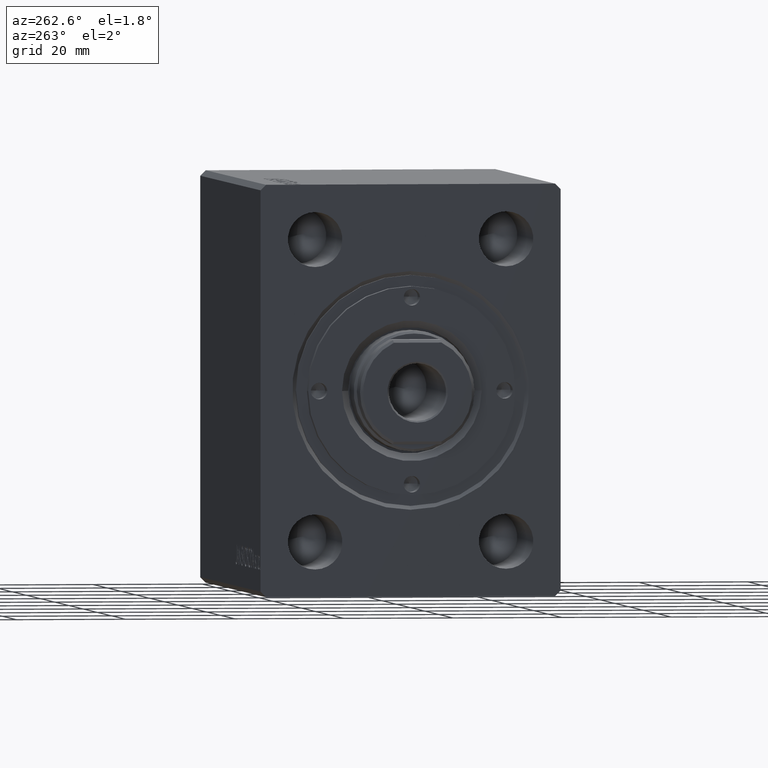
[diagram: clean part render]
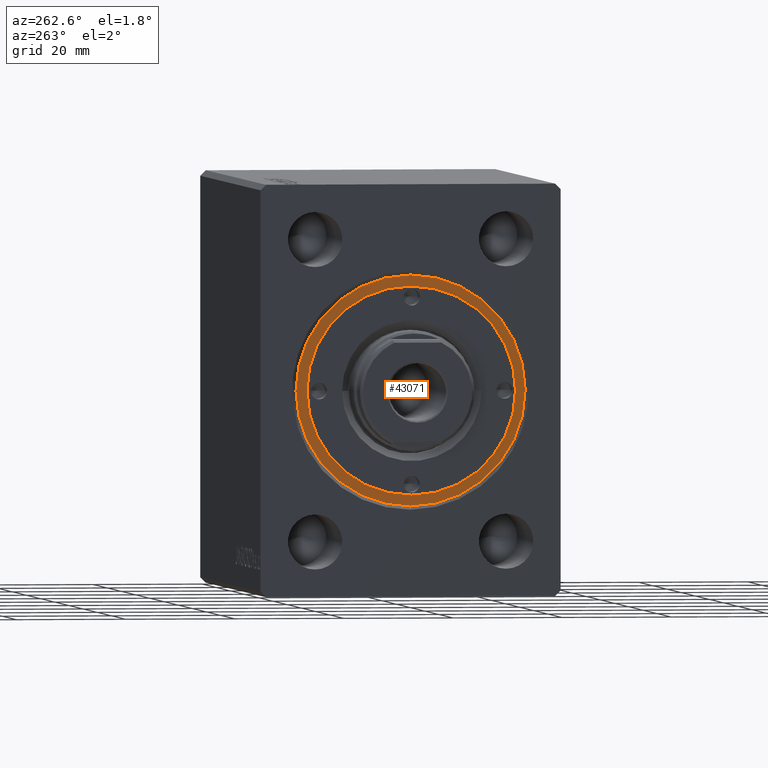
[diagram: same view with one face highlighted and labeled with its STEP entity id]
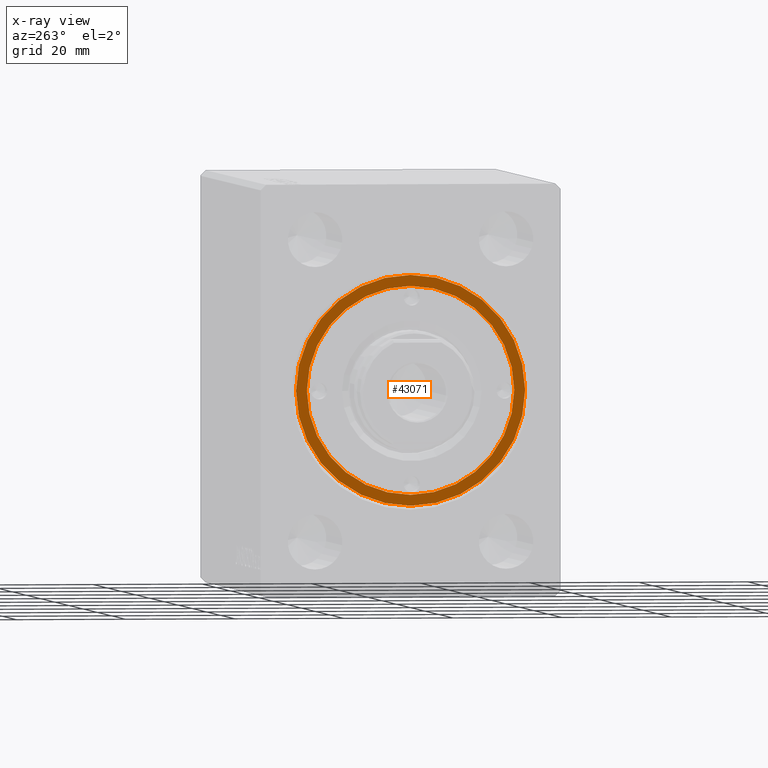
[diagram: x-ray of the same camera — body ghosted, the highlighted face saturated]
A machine part, auxiliary view. The second image highlights one B-rep face of the part: STEP entity #43071.
The next image is the same camera in x-ray: the body ghosted, the highlighted face saturated — about 0% of this face is hidden behind the body in this view.
In plain terms, the highlighted planar face has unit normal (-1, 0, 0).
Its self-contained STEP definition (entity closure, byte-faithful):
#1863 = DIRECTION ( 'NONE',  ( 0.000000000000000000, 0.000000000000000000, 1.000000000000000000 ) ) ;
#2988 = DIRECTION ( 'NONE',  ( 1.000000000000000000, 0.000000000000000000, 0.000000000000000000 ) ) ;
#4882 = CARTESIAN_POINT ( 'NONE',  ( 21.00000000000000000, 2.571758278209441661E-15, 8.199999999999999289 ) ) ;
#4898 = EDGE_CURVE ( 'NONE', #8662, #39719, #26551, .T. ) ;
#5891 = DIRECTION ( 'NONE',  ( 0.000000000000000000, 0.000000000000000000, 1.000000000000000000 ) ) ;
#6568 = CARTESIAN_POINT ( 'NONE',  ( 0.000000000000000000, 0.000000000000000000, 8.199999999999999289 ) ) ;
#7778 = AXIS2_PLACEMENT_3D ( 'NONE', #25098, #24445, #31593 ) ;
#8211 = DIRECTION ( 'NONE',  ( 1.000000000000000000, 0.000000000000000000, 0.000000000000000000 ) ) ;
#8554 = PLANE ( 'NONE',  #18677 ) ;
#8601 = AXIS2_PLACEMENT_3D ( 'NONE', #24184, #38050, #17044 ) ;
#8662 = VERTEX_POINT ( 'NONE', #29883 ) ;
#9280 = EDGE_CURVE ( 'NONE', #42281, #9675, #34307, .T. ) ;
#9675 = VERTEX_POINT ( 'NONE', #20944 ) ;
#9960 = ORIENTED_EDGE ( 'NONE', *, *, #29990, .F. ) ;
#11099 = CARTESIAN_POINT ( 'NONE',  ( 0.000000000000000000, 0.000000000000000000, 8.199999999999999289 ) ) ;
#14710 = AXIS2_PLACEMENT_3D ( 'NONE', #11099, #32080, #8211 ) ;
#15448 = DIRECTION ( 'NONE',  ( 1.000000000000000000, 0.000000000000000000, -0.000000000000000000 ) ) ;
#17044 = DIRECTION ( 'NONE',  ( 1.000000000000000000, 0.000000000000000000, 0.000000000000000000 ) ) ;
#17048 = ORIENTED_EDGE ( 'NONE', *, *, #9280, .T. ) ;
#17296 = AXIS2_PLACEMENT_3D ( 'NONE', #6568, #5891, #2988 ) ;
#18095 = CARTESIAN_POINT ( 'NONE',  ( -19.00000000000000000, 0.000000000000000000, 8.199999999999999289 ) ) ;
#18677 = AXIS2_PLACEMENT_3D ( 'NONE', #22148, #1863, #15448 ) ;
#20944 = CARTESIAN_POINT ( 'NONE',  ( -21.00000000000000000, 0.000000000000000000, 8.199999999999999289 ) ) ;
#21861 = ORIENTED_EDGE ( 'NONE', *, *, #23632, .T. ) ;
#22148 = CARTESIAN_POINT ( 'NONE',  ( 0.000000000000000000, 0.000000000000000000, 8.199999999999999289 ) ) ;
#22459 = EDGE_LOOP ( 'NONE', ( #9960, #25141 ) ) ;
#23632 = EDGE_CURVE ( 'NONE', #9675, #42281, #26807, .T. ) ;
#24184 = CARTESIAN_POINT ( 'NONE',  ( 0.000000000000000000, 0.000000000000000000, 8.199999999999999289 ) ) ;
#24445 = DIRECTION ( 'NONE',  ( 0.000000000000000000, 0.000000000000000000, 1.000000000000000000 ) ) ;
#25098 = CARTESIAN_POINT ( 'NONE',  ( 0.000000000000000000, 0.000000000000000000, 8.199999999999999289 ) ) ;
#25141 = ORIENTED_EDGE ( 'NONE', *, *, #4898, .F. ) ;
#26551 = CIRCLE ( 'NONE', #17296, 19.00000000000000000 ) ;
#26807 = CIRCLE ( 'NONE', #14710, 21.00000000000000000 ) ;
#28649 = FACE_OUTER_BOUND ( 'NONE', #32507, .T. ) ;
#29883 = CARTESIAN_POINT ( 'NONE',  ( 19.00000000000000000, 2.326828918379970970E-15, 8.199999999999999289 ) ) ;
#29990 = EDGE_CURVE ( 'NONE', #39719, #8662, #36983, .T. ) ;
#31593 = DIRECTION ( 'NONE',  ( 1.000000000000000000, 0.000000000000000000, 0.000000000000000000 ) ) ;
#31994 = FACE_BOUND ( 'NONE', #22459, .T. ) ;
#32080 = DIRECTION ( 'NONE',  ( 0.000000000000000000, 0.000000000000000000, 1.000000000000000000 ) ) ;
#32507 = EDGE_LOOP ( 'NONE', ( #21861, #17048 ) ) ;
#34307 = CIRCLE ( 'NONE', #8601, 21.00000000000000000 ) ;
#36983 = CIRCLE ( 'NONE', #7778, 19.00000000000000000 ) ;
#38050 = DIRECTION ( 'NONE',  ( 0.000000000000000000, 0.000000000000000000, 1.000000000000000000 ) ) ;
#39719 = VERTEX_POINT ( 'NONE', #18095 ) ;
#42281 = VERTEX_POINT ( 'NONE', #4882 ) ;
#43071 = ADVANCED_FACE ( 'NONE', ( #31994, #28649 ), #8554, .T. ) ;